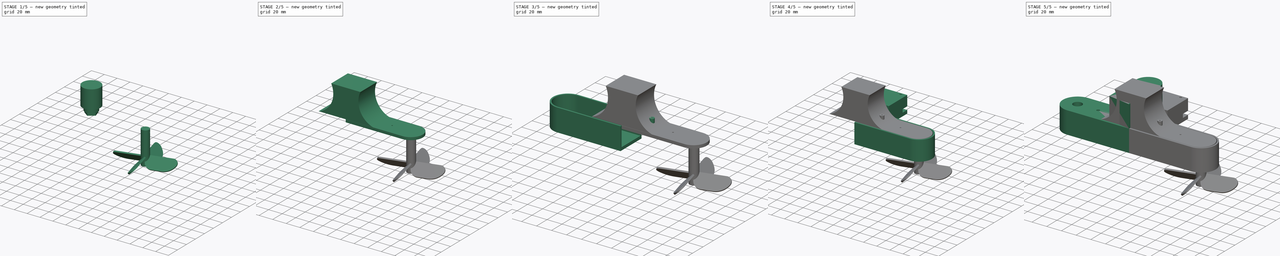
[diagram: build sequence overview — one tinted view per stage of 5, left to right]
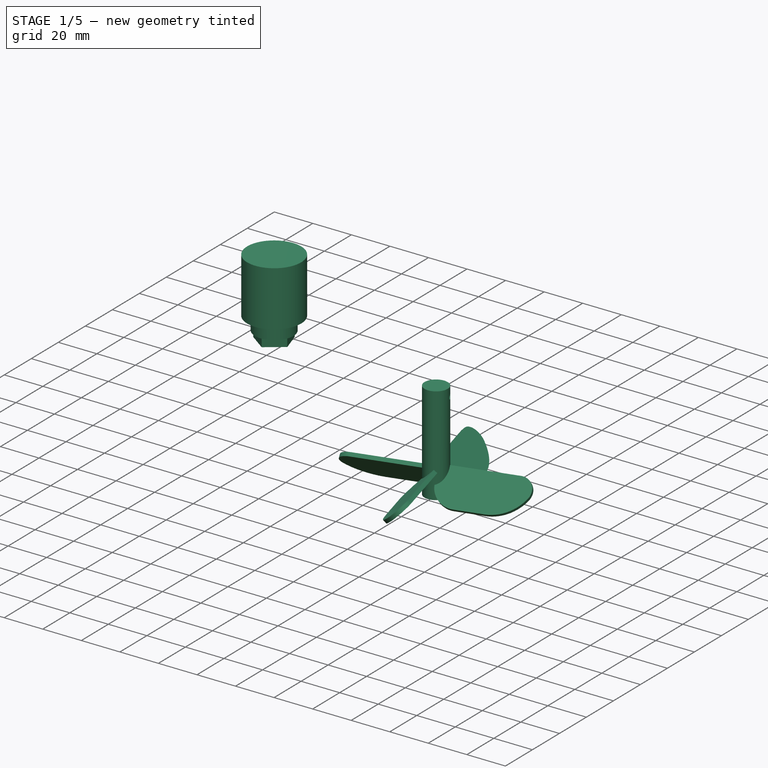
[diagram: stage 1 of 5 — iso view after this stage's code; geometry added in this stage tinted green]
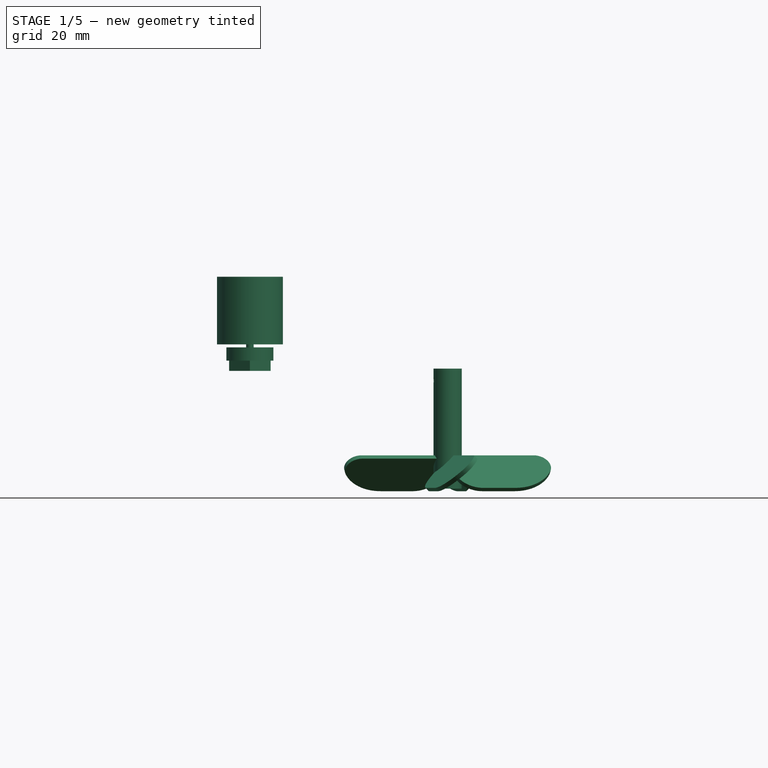
[diagram: stage 1 of 5 — front view after this stage's code; geometry added in this stage tinted green]
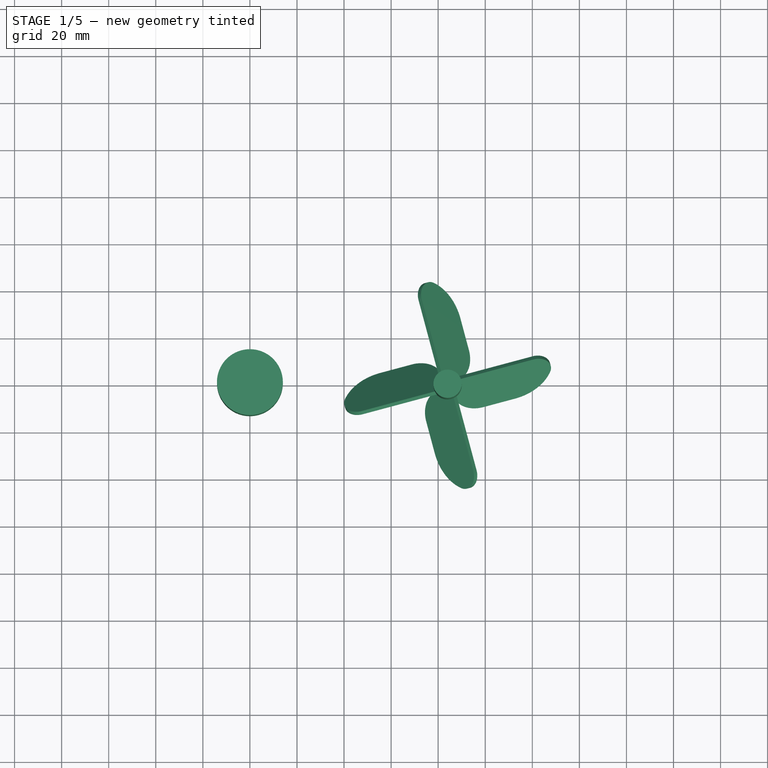
[diagram: stage 1 of 5 — top view after this stage's code; geometry added in this stage tinted green]
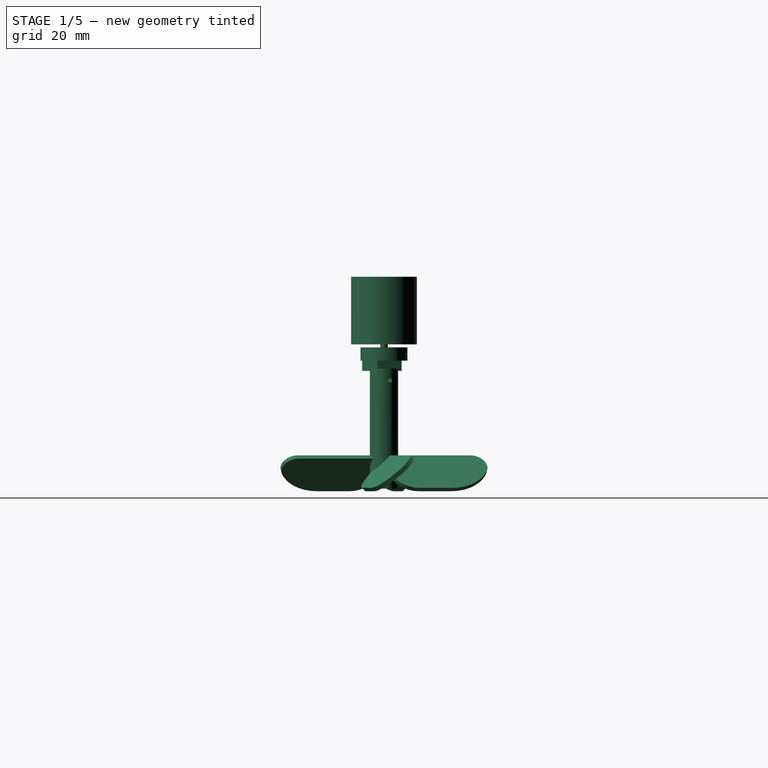
[diagram: stage 1 of 5 — right view after this stage's code; geometry added in this stage tinted green]
FCSTD DOCUMENT  (FreeCAD 0.19R)
Label: brazo_completo
License: Creative Commons Attribution-ShareAlike
LicenseURL: http://creativecommons.org/licenses/by-sa/4.0/
objects: Part::Cylinder×23, Sketcher::SketchObject×20, Part::Cut×18, PartDesign::Body×14, PartDesign::Pad×13, Part::MultiFuse×11, Part::Mirroring×10, Part::Feature×8, App::DocumentObjectGroup×6, PartDesign::Pocket×5, Part::Box×3, PartDesign::FeatureBase×2, Part::Thickness×2, PartDesign::LinearPattern×1, Part::Fuse×1, Part::FeaturePython×1, PartDesign::ShapeBinder×1
note: 150 computed .brp shape members not serialized (recipe doc carries the construction recipe); baked Part::Feature solids carry a one-line shape summary decoded from their .brp

FEATURE [PartDesign::Body] Body007  label="Tapa002"
  Group = -> [Sketch006,Pad004]
  Origin = -> Origin003
  Placement = pos=(0,0,26) rot=(0,0,1;0rad)
  Tip = -> Pad004
FEATURE [Part::Cylinder] Cylinder012  label="Motor"
  Angle = 360
  AttacherType = Attacher::AttachEngine3D
  Height = 28.7
  Radius = 14
FEATURE [Part::Cylinder] Cylinder013  label="Shaft"
  Angle = 360
  AttacherType = Attacher::AttachEngine3D
  Height = 11.3
  Placement = pos=(0,0,28.5) rot=(0,0,1;0rad)
  Radius = 1.6
FEATURE [Part::MultiFuse] Fusion
  Placement = pos=(0,0,65.3) rot=(0,1,0;3.14159rad)
  Refine = true
  Shapes = -> [Cylinder012,Cylinder013]
FEATURE [PartDesign::FeatureBase] BaseFeature
  BaseFeature = -> Fusion
FEATURE [PartDesign::Body] Body017  label="Motor001"
  BaseFeature = -> Fusion
  Group = -> [BaseFeature]
  Origin = -> Origin013
  Placement = pos=(0,0,66) rot=(0,1,0;3.14159rad)
  Tip = -> BaseFeature
FEATURE [Sketcher::SketchObject] Sketch020
  FullyConstrained = true
  MapMode = 5
  Support = -> [XY_Plane014]
  sketch-geometry (1):
    g0: Circle CenterX=0 CenterY=0 CenterZ=0 NormalX=0 NormalY=0 NormalZ=1 AngleXU=0 Radius=10
  constraints (2):
    c: Coincident(g0,g-1)
    c: Radius(g0) = 10
FEATURE [PartDesign::Pad] Pad014
  Direction = (1,1,1)
  Length = 10
  Length2 = 100
  Profile = -> Sketch020
  Refine = true
  Type = 0
FEATURE [PartDesign::Body] Body018
  Group = -> [Sketch020,Pad014]
  Origin = -> Origin014
  Tip = -> Pad014
FEATURE [Part::Feature] Cut013004  label="Engranaje_motor002"
  Placement = pos=(0,0,-21.6) rot=(0,0,1;0rad)
  shape: bbox 29.91 x 29.98 x 26 mm, 246 faces (baked)
FEATURE [Part::Cut] Cut013005
  Base = -> Body018
  Refine = true
  Tool = -> Cut013004
FEATURE [PartDesign::FeatureBase] BaseFeature001
  BaseFeature = -> Cut013005
FEATURE [Sketcher::SketchObject] Sketch021
  FullyConstrained = true
  MapMode = 5
  Placement = pos=(0,0,10) rot=(0,0,1;0rad)
  Support = -> [BaseFeature001]
  sketch-geometry (1):
    g0: Circle CenterX=0 CenterY=0 CenterZ=0 NormalX=0 NormalY=0 NormalZ=1 AngleXU=0 Radius=2
  constraints (2):
    c: Coincident(g0,g-1)
    c: Radius(g0) = 2
FEATURE [PartDesign::Pocket] Pocket004
  BaseFeature = -> BaseFeature001
  Length = 5
  Length2 = 100
  Profile = -> Sketch021
  Refine = true
  Type = 1
FEATURE [Sketcher::SketchObject] Sketch022
  FullyConstrained = false
  MapMode = 5
  Placement = pos=(0,0,10) rot=(0,0,1;0rad)
  Support = -> [Pocket004]
  sketch-geometry (4):
    g0: LineSegment StartX=-2.17573 StartY=6.45033 StartZ=0 EndX=2.17573 EndY=6.45033 EndZ=0
    g1: LineSegment StartX=2.17573 StartY=6.45033 StartZ=0 EndX=2.17573 EndY=4.9982 EndZ=0
    g2: LineSegment StartX=2.17573 StartY=4.9982 StartZ=0 EndX=-2.17573 EndY=4.9982 EndZ=0
    g3: LineSegment StartX=-2.17573 StartY=4.9982 StartZ=0 EndX=-2.17573 EndY=6.45033 EndZ=0
  constraints (8):
    c: Coincident(g0,g1)
    c: Coincident(g1,g2)
    c: Coincident(g2,g3)
    c: Coincident(g3,g0)
    c: Horizontal(g2)
    c: Vertical(g1)
    c: Vertical(g3)
    c: Symmetric(g0,g0,g-2)
FEATURE [PartDesign::Pocket] Pocket005
  BaseFeature = -> Pocket004
  Length = 7
  Length2 = 100
  Profile = -> Sketch022
  Refine = true
  Type = 0
FEATURE [PartDesign::Body] Body019
  BaseFeature = -> Cut013005
  Group = -> [BaseFeature001,Sketch021,Pocket004,Sketch022,Pocket005]
  Origin = -> Origin015
  Tip = -> Pocket005
FEATURE [Part::Cylinder] Cylinder024  label="Cilindro009"
  Angle = 360
  AttacherType = Attacher::AttachEngine3D
  Height = 15
  Placement = pos=(0,14,7) rot=(1,0,0;1.5708rad)
  Radius = 1
FEATURE [Part::Cut] Cut013006  label="Eslabon"
  Base = -> Body019
  Placement = pos=(0,0,26) rot=(0,0,1;0rad)
  Refine = true
  Tool = -> Cylinder024
FEATURE [Sketcher::SketchObject] Sketch024
  FullyConstrained = false
  MapMode = 5
  Placement = pos=(0,0,0) rot=(1,0,0;1.5708rad)
  Support = -> [XZ_Plane017]
  sketch-geometry (8):
    g0: LineSegment StartX=0.337026 StartY=20 StartZ=0 EndX=25.337 EndY=20 EndZ=0
    g1: LineSegment StartX=11.2871 StartY=0.437393 StartZ=0 EndX=25.337 EndY=0.437393 EndZ=0
    g2: LineSegment StartX=0.337026 StartY=20 StartZ=0 EndX=0.337026 EndY=11.3875 EndZ=0
    g3: ArcOfCircle CenterX=25.337 CenterY=20.4374 CenterZ=0 NormalX=0 NormalY=0 NormalZ=1 AngleXU=0 Radius=20 StartAngle=4.71239 EndAngle=5.75809
    g4: GeomPoint X=40.6848 Y=7.61375 Z=0
    g5: LineSegment StartX=25.337 StartY=20 StartZ=0 EndX=37.1162 EndY=20 EndZ=0
    g6: ArcOfCircle CenterX=37.1162 CenterY=13.6132 CenterZ=0 NormalX=0 NormalY=0 NormalZ=1 AngleXU=0 Radius=6.38684 StartAngle=5.75809 EndAngle=7.85398
    g7: ArcOfCircle CenterX=11.2871 CenterY=11.3875 CenterZ=0 NormalX=0 NormalY=0 NormalZ=1 AngleXU=0 Radius=10.9501 StartAngle=3.14159 EndAngle=4.71239
  constraints (17):
    c: Coincident(g3,g1)
    c: Vertical(g0,g3)
    c: Vertical(g1,g0)
    c: Horizontal(g0)
    c: PointOnObject(g4,g3)
    c: Coincident(g2,g0)
    c: Coincident(g5,g0)
    c: Horizontal(g5)
    c: Vertical(g2)
    c: DistanceY(g-1,g0) = 20
    c: Radius(g3) = 20
    c: DistanceX(g0,g3) = 25  'Reff'
    c: Horizontal(g1)
    c: Tangent(g3,g6) = -1.5708
    c: Tangent(g5,g6) = 1.5708
    c: Tangent(g1,g7) = -1.5708
    c: Tangent(g2,g7) = -1.5708
FEATURE [PartDesign::Pad] Pad016
  Direction = (1,1,1)
  Length = 2
  Length2 = 100
  Placement = pos=(0,0,0) rot=(1,0,0;1.5708rad)
  Profile = -> Sketch024
  Refine = true
  Type = 0
FEATURE [Part::Cylinder] Cylinder029  label="Eje007"
  Angle = 360
  AttacherType = Attacher::AttachEngine3D
  Height = 51
  Radius = 6
FEATURE [Part::Feature] Fusion001003  label="Rosca macho004"
  Placement = pos=(-1,8,46) rot=(1,0,0;1.5708rad)
  shape: bbox 3.919 x 44 x 4.387 mm, 35 faces (baked)
FEATURE [Part::Cut] Cut013012
  Base = -> Cylinder029
  Refine = true
  Tool = -> Fusion001003
FEATURE [PartDesign::Body] Body021  label="Helice001"
  Group = -> [Sketch024,Pad016]
  Origin = -> Origin017
  Placement = pos=(1,13,0) rot=(1,0,0;0.785398rad)
  Tip = -> Pad016
FEATURE [Part::FeaturePython] Array  # Draft array (typed FeaturePython)
  Angle = 360
  ArrayType = 1
  Axis = (0,0,1)
  Base = -> Body021
  Center = (0,0,0)
  Count = 4
  ExpandArray = false
  Fuse = false
  IntervalAxis = (0,0,0)
  IntervalX = (50,0,0)
  IntervalY = (0,50,0)
  IntervalZ = (0,0,50)
  NumberCircles = 3
  NumberPolar = 4
  NumberX = 2
  NumberY = 2
  NumberZ = 1
  PlacementList = 4 placements: [(1,13,0),(-13,1,0),(-1,-13,0),(13,-1,0)]
  RadialDistance = 50
  ScaleList = (4) [(1,1,1),(1,1,1),(1,1,1),(1,1,1)]
  Symmetry = 1
  TangentialDistance = 25
FEATURE [Part::MultiFuse] Fusion001017  label="Helice_izquierda"
  Placement = pos=(-84,0,-24) rot=(0,0,-1;1.8326rad)
  Refine = true
  Shapes = -> [Cut013012,Array]
FEATURE [App::DocumentObjectGroup] Grupo003  label="tapa"
  Group = -> [Cut010002,Part__Mirroring011]
FEATURE [Part::MultiFuse] Fusion001015
  Refine = true
  Shapes = -> [Cut013006,Body017]
FEATURE [App::DocumentObjectGroup] Grupo004  label="Recursos"
  Group = -> [Body007,Body006,Body,Cut013005,Fusion,Fusion001015]
FEATURE [Part::Mirroring] Part__Mirroring012  label="Helice_izquierda (Mirror #10)"
  Base = (0,0,0)
  Normal = (1,0,0)
  Source = -> Fusion001017
FEATURE [App::DocumentObjectGroup] Grupo005  label="Engranajes_espejo"
  Group = -> [Part__Mirroring008,Part__Mirroring007,Part__Mirroring006,Part__Mirroring004,Part__Mirroring003,Part__Mirroring012]
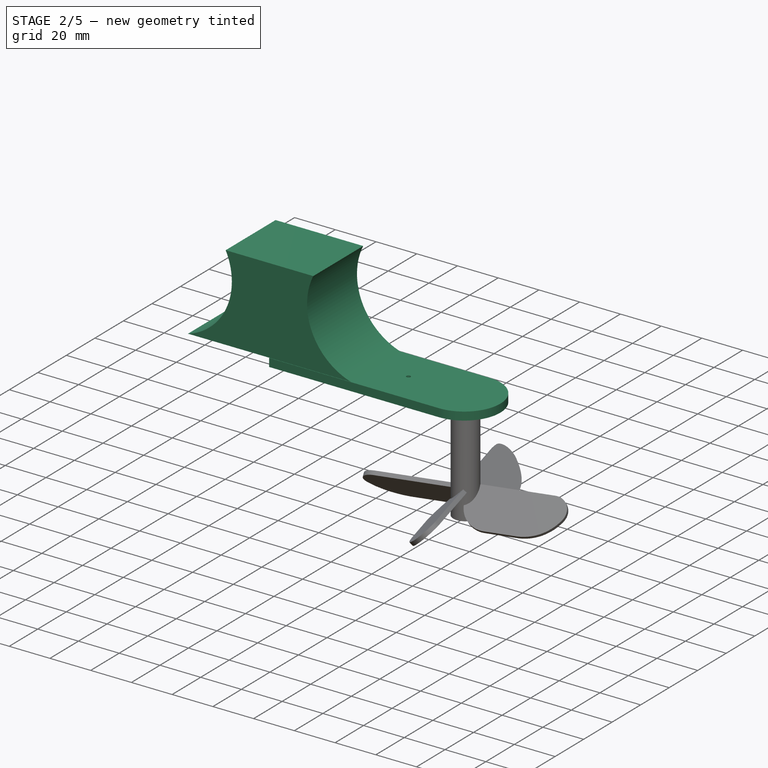
[diagram: stage 2 of 5 — iso view after this stage's code; geometry added in this stage tinted green]
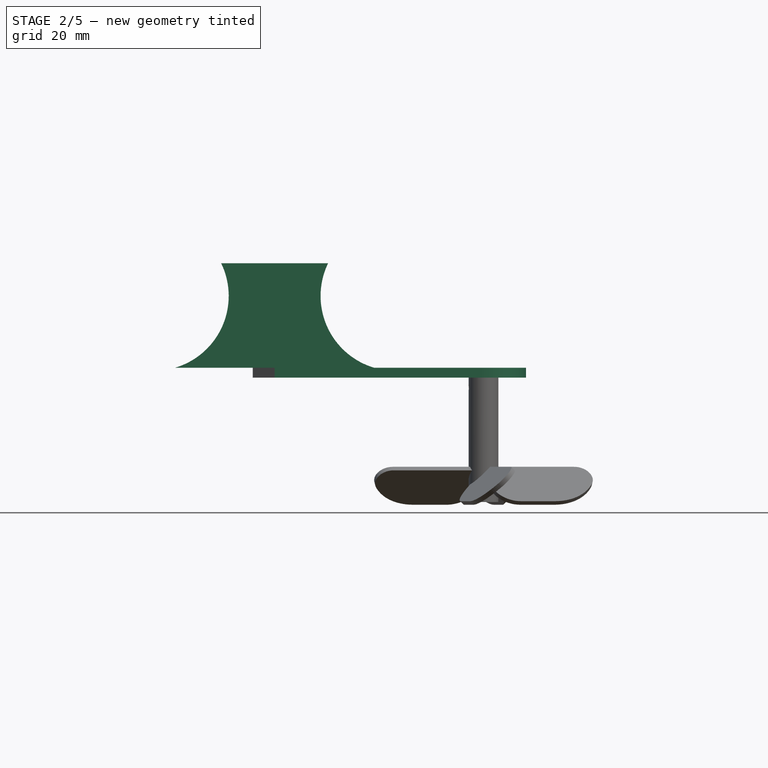
[diagram: stage 2 of 5 — front view after this stage's code; geometry added in this stage tinted green]
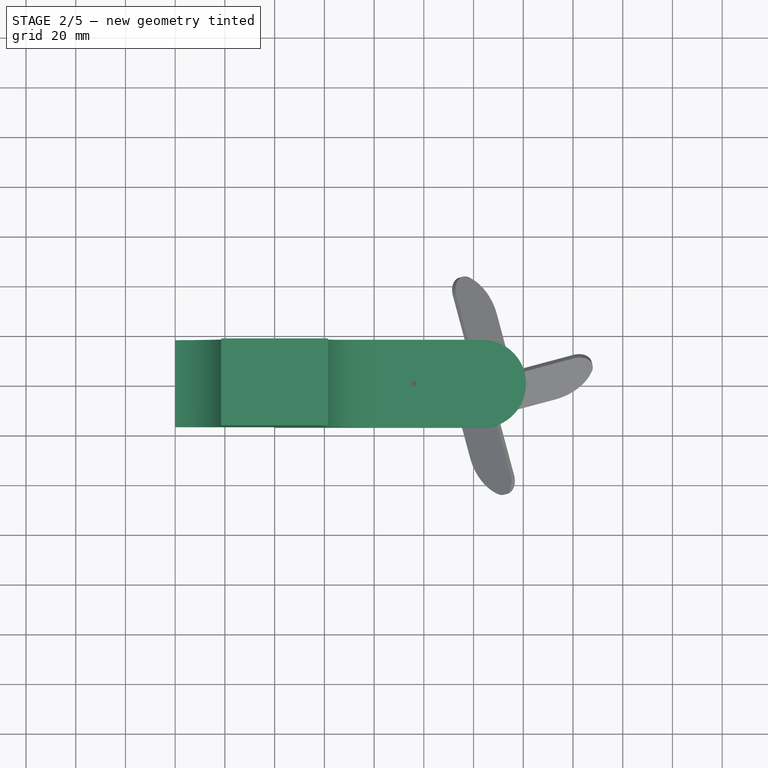
[diagram: stage 2 of 5 — top view after this stage's code; geometry added in this stage tinted green]
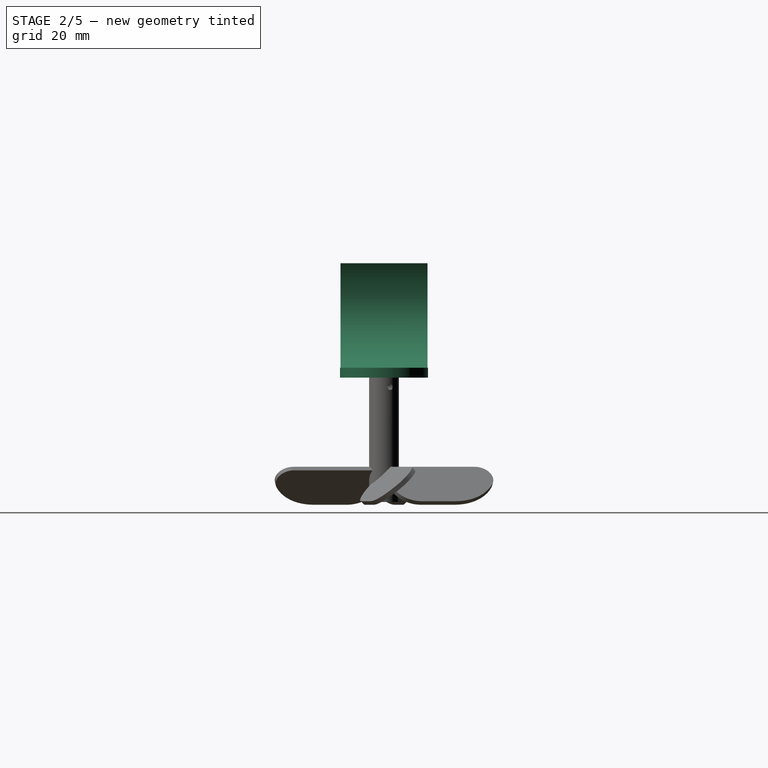
[diagram: stage 2 of 5 — right view after this stage's code; geometry added in this stage tinted green]
FEATURE [Part::Cylinder] Cylinder021  label="Eje004"
  Angle = 360
  AttacherType = Attacher::AttachEngine3D
  Height = 16
  Placement = pos=(0,0,15) rot=(0,0,1;0rad)
  Radius = 11.3
FEATURE [Part::Cylinder] Cylinder020  label="Eje003"
  Angle = 360
  AttacherType = Attacher::AttachEngine3D
  Height = 15
  Placement = pos=(-28,0,13) rot=(0,0,1;0rad)
  Radius = 7.3
FEATURE [Part::Cylinder] Cylinder007  label="Eje002"
  Angle = 360
  AttacherType = Attacher::AttachEngine3D
  Height = 15
  Placement = pos=(-56,0,13) rot=(0,0,1;0rad)
  Radius = 7.3
FEATURE [Part::MultiFuse] Fusion001011
  Refine = true
  Shapes = -> [Cylinder007,Cylinder020]
FEATURE [Part::Cylinder] Cylinder019  label="Eje001"
  Angle = 360
  AttacherType = Attacher::AttachEngine3D
  Height = 52
  Placement = pos=(-84,0,-24) rot=(0,0,1;0rad)
  Radius = 7.3
FEATURE [Sketcher::SketchObject] Sketch004  label="Estructura001"
  FullyConstrained = true
  MapMode = 5
  Support = -> [XY_Plane001]
  sketch-geometry (4):
    g0: LineSegment StartX=0 StartY=17.7 StartZ=0 EndX=-83.4 EndY=17.7 EndZ=0
    g1: LineSegment StartX=0 StartY=-17.7 StartZ=0 EndX=-83.4 EndY=-17.7 EndZ=0
    g2: ArcOfCircle CenterX=-83.4 CenterY=2e-16 CenterZ=0 NormalX=0 NormalY=0 NormalZ=1 AngleXU=0 Radius=17.7 StartAngle=1.5708 EndAngle=4.71239
    g3: LineSegment StartX=0 StartY=17.7 StartZ=0 EndX=0 EndY=-17.7 EndZ=0
  constraints (12):
    c: PointOnObject(g0,g-2)
    c: Horizontal(g0)
    c: PointOnObject(g1,g-2)
    c: Horizontal(g1)
    c: Symmetric(g0,g1,g-1)
    c: Coincident(g2,g1)
    c: Coincident(g2,g0)
    c: Vertical(g2,g0)
    c: Coincident(g3,g0)
    c: Coincident(g3,g1)
    c: DistanceX(g1,g1) = 83.4
    c: DistanceY(g2,g0) = 17.7
FEATURE [PartDesign::Pad] Pad002
  Direction = (1,1,1)
  Length = 4
  Length2 = 100
  Profile = -> Sketch004
  Refine = true
  Type = 0
FEATURE [PartDesign::Body] Body005  label="Tapa"
  Group = -> [Sketch004,Pad002]
  Origin = -> Origin001
  Placement = pos=(0,0,26) rot=(0,0,1;0rad)
  Tip = -> Pad002
FEATURE [Part::Cut] Cut
  Base = -> Body005
  Refine = true
  Tool = -> Cylinder019
FEATURE [Part::Cut] Cut026
  Base = -> Cut
  Refine = true
  Tool = -> Fusion001011
FEATURE [Part::Cut] Cut027
  Base = -> Cut026
  Refine = true
  Tool = -> Cylinder021
FEATURE [Part::Feature] Cut010001  label="Engranaje_motor001"
  Placement = pos=(0,0,4.4) rot=(0,0,1;0rad)
  shape: bbox 29.91 x 29.98 x 26 mm, 246 faces (baked)
FEATURE [Part::Cylinder] Cylinder022  label="Cilindro007"
  Angle = 360
  AttacherType = Attacher::AttachEngine3D
  Height = 10
  Placement = pos=(-28,0,-4) rot=(0,0,1;0rad)
  Radius = 1
FEATURE [Part::Cylinder] Cylinder023  label="Cilindro008"
  Angle = 360
  AttacherType = Attacher::AttachEngine3D
  Height = 10
  Placement = pos=(-56,0,-4) rot=(0,0,1;0rad)
  Radius = 1
FEATURE [Part::MultiFuse] Fusion001013
  Placement = pos=(0,0,27) rot=(0,0,1;0rad)
  Refine = true
  Shapes = -> [Cylinder023,Cylinder022]
FEATURE [Part::Cut] Cut010002
  Base = -> Cut027
  Refine = true
  Tool = -> Fusion001013
FEATURE [Part::Box] Box001  label="Cubo001"
  AttacherType = Attacher::AttachEngine3D
  Height = 26
  Length = 27
  Placement = pos=(-14,0,42) rot=(0,0,1;0rad)
  Width = 22
FEATURE [App::DocumentObjectGroup] Grupo002  label="Base"
  Group = -> [Fusion001014,Part__Mirroring009,Cut013021]
FEATURE [Sketcher::SketchObject] Sketch023
  FullyConstrained = false
  MapMode = 5
  Placement = pos=(0,0,0) rot=(1,0,0;1.5708rad)
  Support = -> [XZ_Plane016]
  sketch-geometry (4):
    g0: ArcOfCircle CenterX=48.5606 CenterY=28.8451 CenterZ=0 NormalX=0 NormalY=0 NormalZ=1 AngleXU=0 Radius=30.0886 StartAngle=2.68911 EndAngle=4.42389
    g1: LineSegment StartX=40 StartY=0 StartZ=0 EndX=-40 EndY=0 EndZ=0
    g2: ArcOfCircle CenterX=-48.5606 CenterY=28.8451 CenterZ=0 NormalX=0 NormalY=0 NormalZ=1 AngleXU=0 Radius=30.0886 StartAngle=5.00089 EndAngle=6.73567
    g3: LineSegment StartX=-21.5 StartY=42 StartZ=0 EndX=21.5 EndY=42 EndZ=0
  constraints (11):
    c: PointOnObject(g0,g-1)
    c: Coincident(g2,g1)
    c: Symmetric(g2,g0,g-2)
    c: Symmetric(g1,g0,g-2)
    c: Symmetric(g2,g0,g-2)
    c: Coincident(g3,g2)
    c: Coincident(g3,g0)
    c: Coincident(g1,g0)
    c: DistanceY(g1,g2) = 42
    c: DistanceX(g2,g0) = 43
    c: DistanceX(g1,g0) = 80
FEATURE [PartDesign::Pad] Pad015
  Direction = (1,1,1)
  Length = 35
  Length2 = 100
  Placement = pos=(0,0,0) rot=(1,0,0;1.5708rad)
  Profile = -> Sketch023
  Refine = true
  Type = 0
FEATURE [Part::Thickness] Thickness
  Faces = -> Pad015 [Face2]
  Intersection = false
  Join = 0
  Mode = 0
  Placement = pos=(0,17.5,30) rot=(0,0,1;0rad)
  SelfIntersection = false
  Value = -1
FEATURE [Part::Cut] Cut013014
  Base = -> Thickness
  Refine = true
  Tool = -> Box001
FEATURE [PartDesign::Body] Body020  label="Sup_motor"
  Group = -> [Sketch023,Pad015]
  Origin = -> Origin016
  Placement = pos=(0,-17,30) rot=(0,0,1;3.14159rad)
  Tip = -> Pad015
FEATURE [App::DocumentObjectGroup] Grupo006  label="Soporte motor"
  Group = -> [Cut013016,Body020,Cut013022]
FEATURE [Part::Mirroring] Part__Mirroring011  label="Espejo_tapa"
  Base = (0,0,0)
  Normal = (1,0,0)
  Source = -> Cut010002
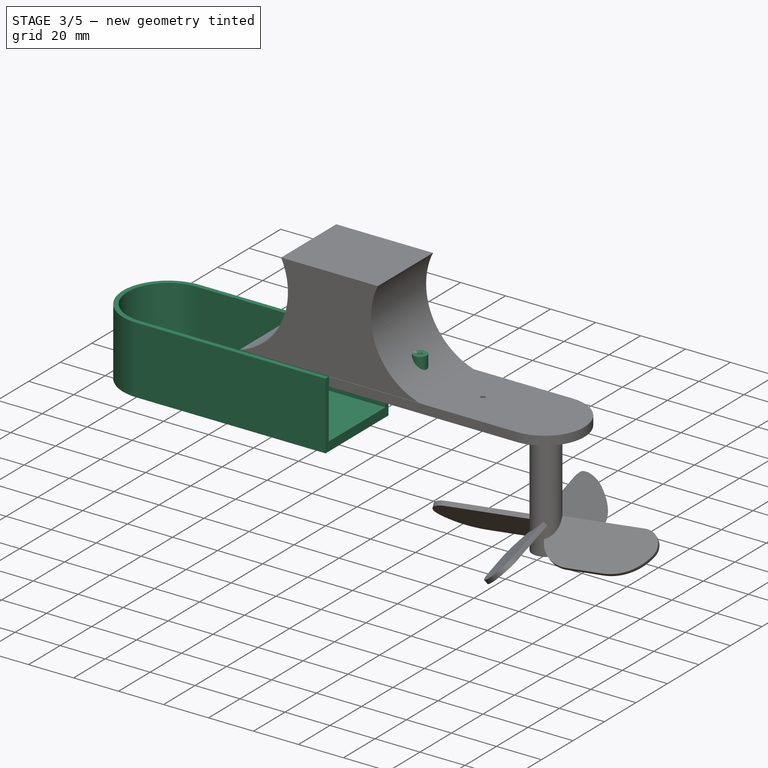
[diagram: stage 3 of 5 — iso view after this stage's code; geometry added in this stage tinted green]
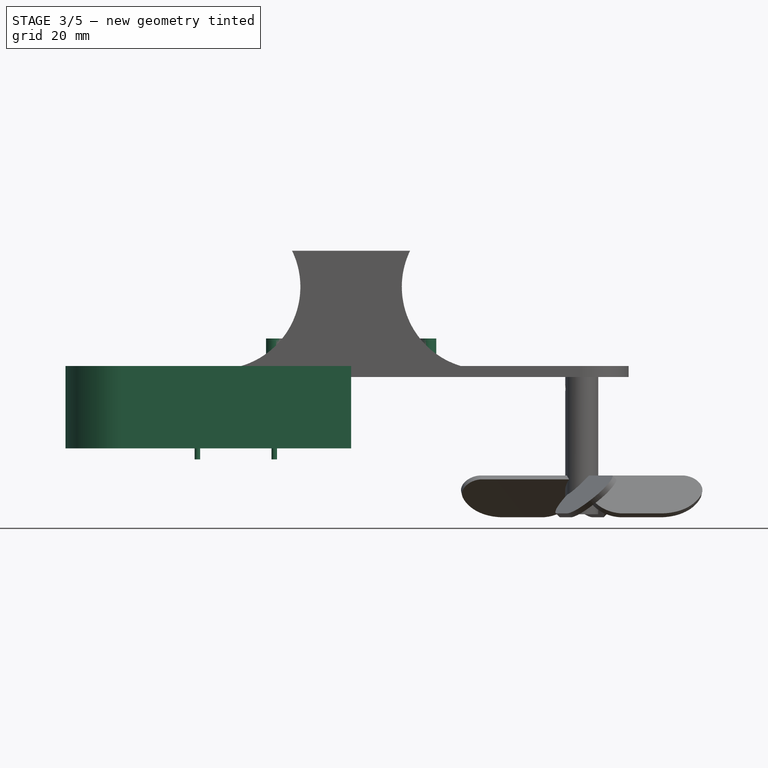
[diagram: stage 3 of 5 — front view after this stage's code; geometry added in this stage tinted green]
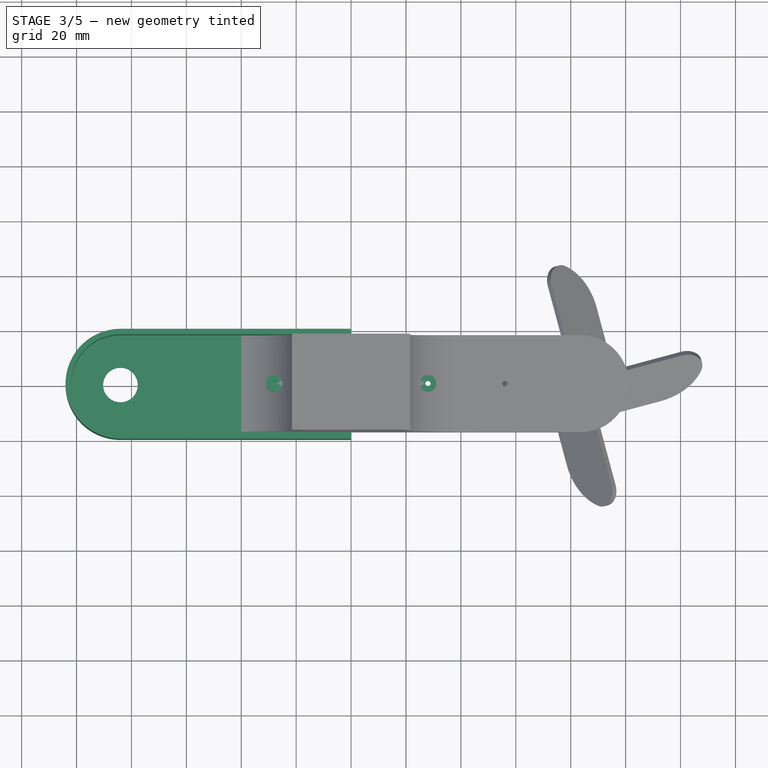
[diagram: stage 3 of 5 — top view after this stage's code; geometry added in this stage tinted green]
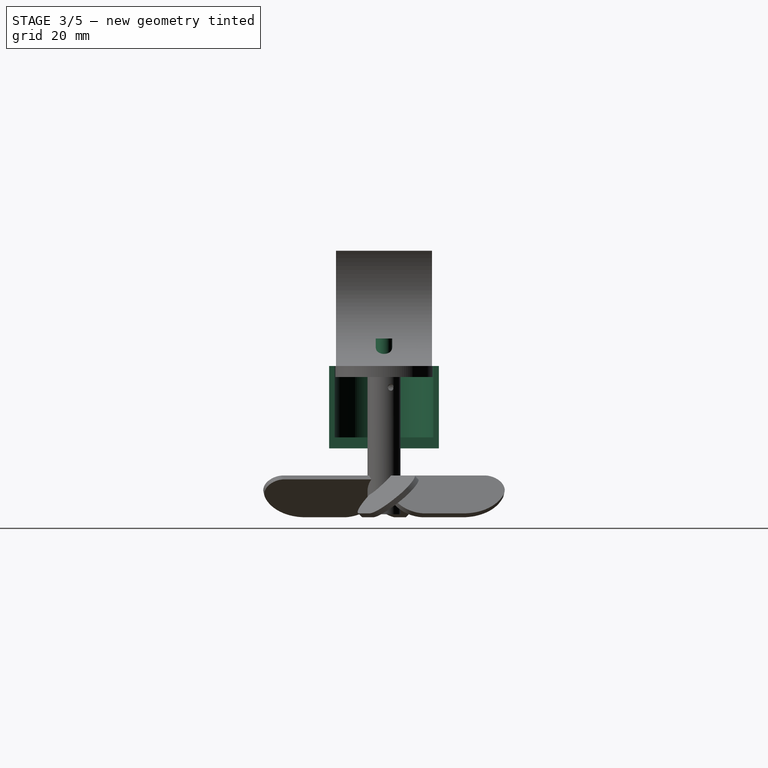
[diagram: stage 3 of 5 — right view after this stage's code; geometry added in this stage tinted green]
FEATURE [Sketcher::SketchObject] Sketch008  label="Estructura004"
  FullyConstrained = true
  MapMode = 5
  Support = -> [XY_Plane006]
  sketch-geometry (4):
    g0: LineSegment StartX=0 StartY=20 StartZ=0 EndX=-84 EndY=20 EndZ=0
    g1: LineSegment StartX=0 StartY=-20 StartZ=0 EndX=-84 EndY=-20 EndZ=0
    g2: ArcOfCircle CenterX=-84 CenterY=-9e-16 CenterZ=0 NormalX=0 NormalY=0 NormalZ=1 AngleXU=0 Radius=20 StartAngle=1.5708 EndAngle=4.71239
    g3: LineSegment StartX=0 StartY=20 StartZ=0 EndX=0 EndY=-20 EndZ=0
  constraints (12):
    c: PointOnObject(g0,g-2)
    c: Horizontal(g0)
    c: PointOnObject(g1,g-2)
    c: Horizontal(g1)
    c: Symmetric(g0,g1,g-1)
    c: Coincident(g2,g1)
    c: Coincident(g2,g0)
    c: Vertical(g2,g0)
    c: Coincident(g3,g0)
    c: Coincident(g3,g1)
    c: DistanceX(g1,g1) = 84
    c: DistanceY(g2,g0) = 20
FEATURE [PartDesign::Pad] Pad006
  Direction = (1,1,1)
  Length = 30
  Length2 = 100
  Profile = -> Sketch008
  Refine = true
  Type = 0
FEATURE [PartDesign::Body] Body010  label="Base001"
  Group = -> [Sketch008,Pad006]
  Origin = -> Origin006
  Tip = -> Pad006
FEATURE [Sketcher::SketchObject] Sketch009  label="Estructura005"
  FullyConstrained = true
  MapMode = 5
  Support = -> [XY_Plane007]
  sketch-geometry (4):
    g0: LineSegment StartX=0 StartY=18 StartZ=0 EndX=-84 EndY=18 EndZ=0
    g1: LineSegment StartX=0 StartY=-18 StartZ=0 EndX=-84 EndY=-18 EndZ=0
    g2: ArcOfCircle CenterX=-84 CenterY=-4e-16 CenterZ=0 NormalX=0 NormalY=0 NormalZ=1 AngleXU=0 Radius=18 StartAngle=1.5708 EndAngle=4.71239
    g3: LineSegment StartX=0 StartY=18 StartZ=0 EndX=0 EndY=-18 EndZ=0
  constraints (12):
    c: PointOnObject(g0,g-2)
    c: Horizontal(g0)
    c: PointOnObject(g1,g-2)
    c: Horizontal(g1)
    c: Symmetric(g0,g1,g-1)
    c: Coincident(g2,g1)
    c: Coincident(g2,g0)
    c: Vertical(g2,g0)
    c: Coincident(g3,g0)
    c: Coincident(g3,g1)
    c: DistanceX(g1,g1) = 84
    c: DistanceY(g2,g0) = 18
FEATURE [PartDesign::Pad] Pad007
  Direction = (1,1,1)
  Length = 30
  Length2 = 100
  Profile = -> Sketch009
  Refine = true
  Type = 0
FEATURE [PartDesign::Body] Body011  label="Base002"
  Group = -> [Sketch009,Pad007]
  Origin = -> Origin007
  Placement = pos=(0,0,4) rot=(0,0,1;0rad)
  Tip = -> Pad007
FEATURE [Part::Cut] Cut017  label="Base003"
  Base = -> Body010
  Refine = true
  Tool = -> Body011
FEATURE [Part::Cylinder] Cylinder  label="Eje"
  Angle = 360
  AttacherType = Attacher::AttachEngine3D
  Height = 52
  Placement = pos=(-84,0,-28) rot=(0,0,1;0rad)
  Radius = 6.3
FEATURE [Part::Cut] Cut018
  Base = -> Cut017
  Refine = true
  Tool = -> Cylinder
FEATURE [Part::Cylinder] Cylinder017  label="Cilindro005"
  Angle = 360
  AttacherType = Attacher::AttachEngine3D
  Height = 10
  Placement = pos=(-28,0,-4) rot=(0,0,1;0rad)
  Radius = 1
FEATURE [Part::Cylinder] Cylinder018  label="Cilindro006"
  Angle = 360
  AttacherType = Attacher::AttachEngine3D
  Height = 10
  Placement = pos=(-56,0,-4) rot=(0,0,1;0rad)
  Radius = 1
FEATURE [Part::MultiFuse] Fusion001010
  Refine = true
  Shapes = -> [Cylinder018,Cylinder017]
FEATURE [Part::Cylinder] Cylinder032  label="Cilindro012"
  Angle = 360
  AttacherType = Attacher::AttachEngine3D
  Height = 21
  Placement = pos=(-28,0,21) rot=(0,0,1;0rad)
  Radius = 1
FEATURE [Part::Mirroring] Part__Mirroring  label="Cilindro012 (Mirror #6)"
  Base = (0,0,0)
  Normal = (1,0,0)
  Source = -> Cylinder032
FEATURE [Part::Cylinder] Cylinder034  label="Cilindro014"
  Angle = 360
  AttacherType = Attacher::AttachEngine3D
  Height = 21
  Placement = pos=(-28,0,21) rot=(0,0,1;0rad)
  Radius = 1
FEATURE [Part::MultiFuse] Fusion001018
  Refine = true
  Shapes = -> [Cylinder032,Part__Mirroring,Cylinder034]
FEATURE [Part::Cylinder] Cylinder036  label="Cilindro016"
  Angle = 360
  AttacherType = Attacher::AttachEngine3D
  Height = 8
  Placement = pos=(-28,0,32) rot=(0,0,1;0rad)
  Radius = 3
FEATURE [Part::Mirroring] Part__Mirroring010  label="Cilindro016 (Mirror #8)"
  Base = (0,0,0)
  Normal = (1,0,0)
  Source = -> Cylinder036
FEATURE [Part::Cylinder] Cylinder037  label="Cilindro017"
  Angle = 360
  AttacherType = Attacher::AttachEngine3D
  Height = 8
  Placement = pos=(-28,0,32) rot=(0,0,1;0rad)
  Radius = 3
FEATURE [Part::MultiFuse] Fusion001019
  Refine = true
  Shapes = -> [Cylinder037,Part__Mirroring010]
FEATURE [Part::MultiFuse] Fusion001020
  Refine = true
  Shapes = -> [Cut013014,Fusion001019]
FEATURE [Part::Cut] Cut013022
  Base = -> Fusion001020
  Refine = true
  Tool = -> Fusion001018
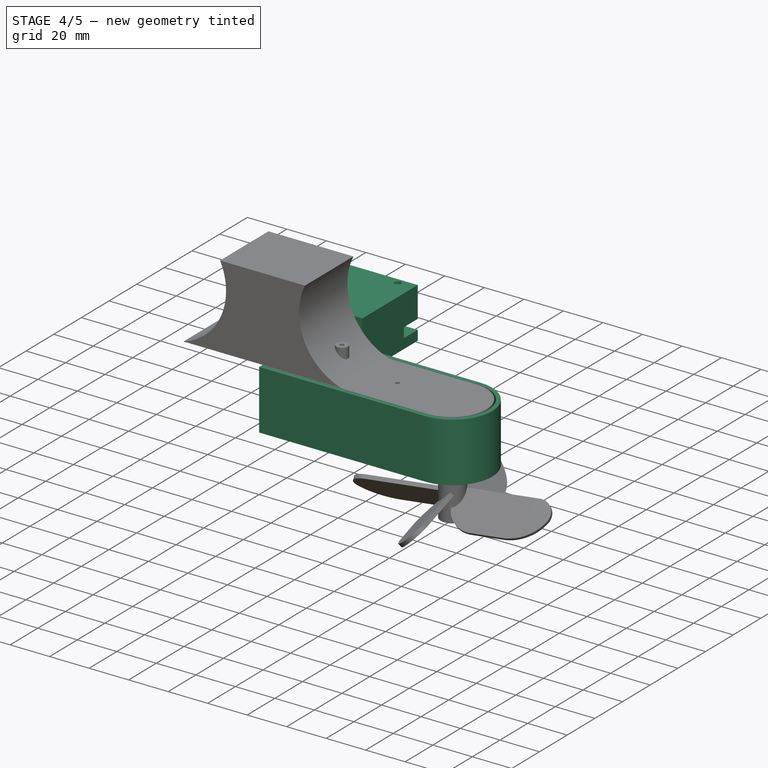
[diagram: stage 4 of 5 — iso view after this stage's code; geometry added in this stage tinted green]
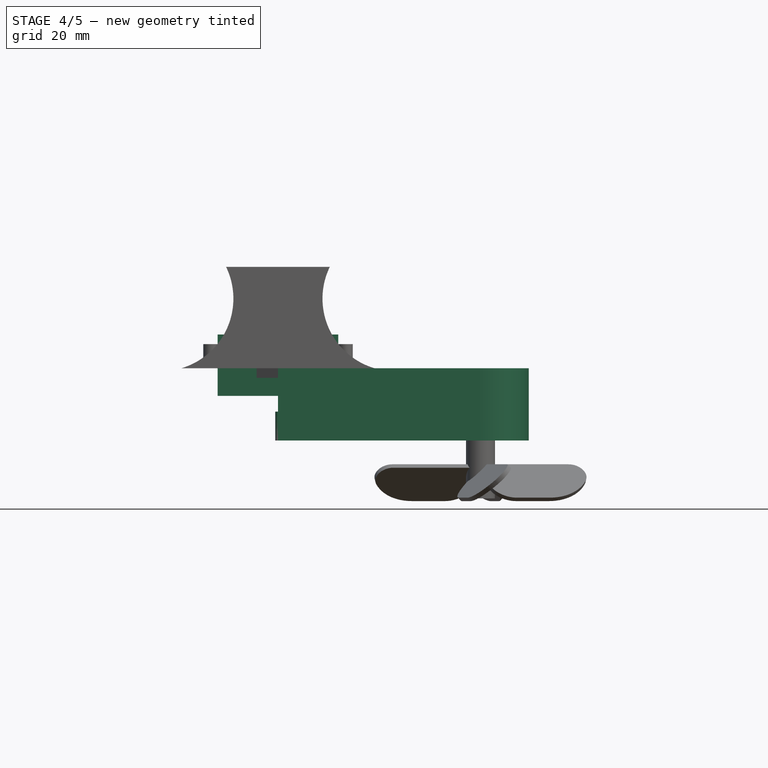
[diagram: stage 4 of 5 — front view after this stage's code; geometry added in this stage tinted green]
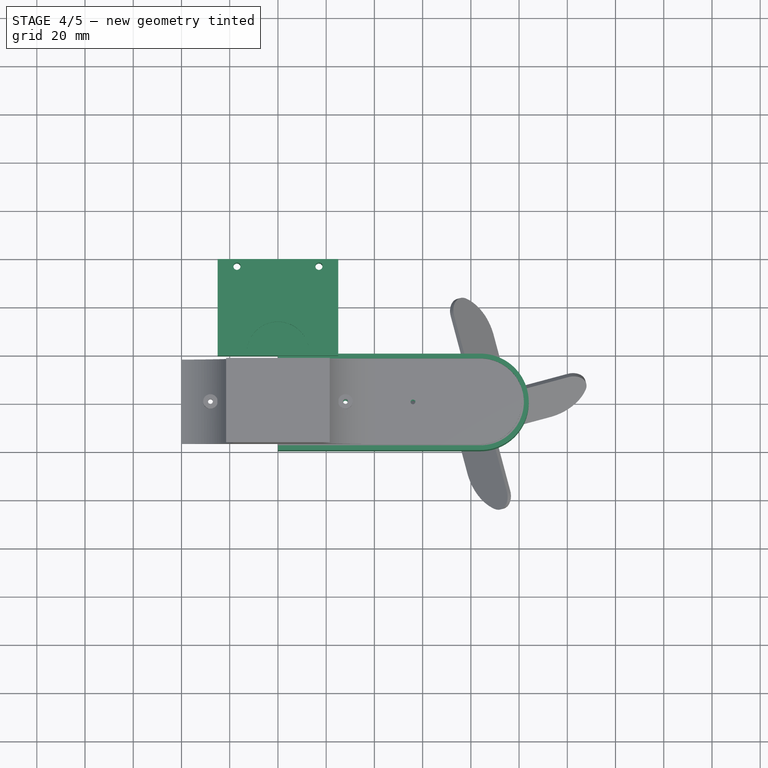
[diagram: stage 4 of 5 — top view after this stage's code; geometry added in this stage tinted green]
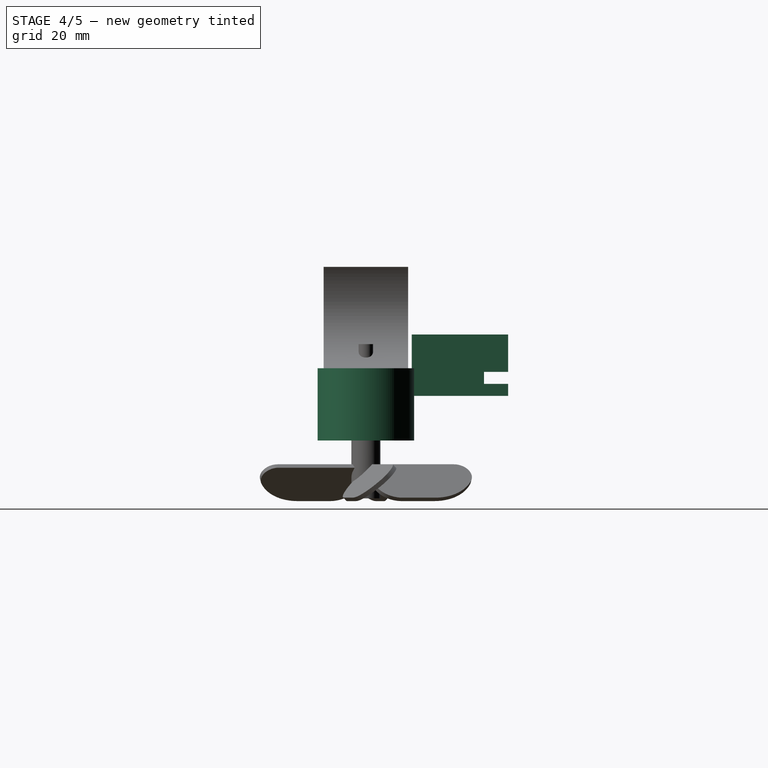
[diagram: stage 4 of 5 — right view after this stage's code; geometry added in this stage tinted green]
FEATURE [Part::Cylinder] Cylinder014  label="Cilindro"
  Angle = 360
  AttacherType = Attacher::AttachEngine3D
  Height = 12
  Radius = 1.1
FEATURE [Part::MultiFuse] Fusion001006
  Refine = true
  Shapes = -> [Cut018,Cylinder014]
FEATURE [Part::Cylinder] Cylinder003  label="Cilindro003"
  Angle = 360
  AttacherType = Attacher::AttachEngine3D
  Height = 44
  Placement = pos=(17,63,-20) rot=(0,0,1;0rad)
  Radius = 1.5
FEATURE [Part::Cylinder] Cylinder002  label="Cilindro004"
  Angle = 360
  AttacherType = Attacher::AttachEngine3D
  Height = 44
  Placement = pos=(-17,63,-22) rot=(0,0,1;0rad)
  Radius = 1.5
FEATURE [Part::Fuse] Fusion001009
  Base = -> Cylinder002
  Placement = pos=(0,-15,0) rot=(0,0,1;0rad)
  Refine = true
  Tool = -> Cylinder003
FEATURE [Sketcher::SketchObject] Sketch014
  FullyConstrained = true
  MapMode = 5
  Placement = pos=(0,0,0) rot=(0.57735,0.57735,0.57735;2.0944rad)
  Support = -> [YZ_Plane009]
  sketch-geometry (8):
    g0: LineSegment StartX=-20 StartY=-7.5 StartZ=0 EndX=-20 EndY=18 EndZ=0
    g1: LineSegment StartX=-20 StartY=18 StartZ=0 EndX=20 EndY=18 EndZ=0
    g2: LineSegment StartX=20 StartY=18 StartZ=0 EndX=20 EndY=2.5 EndZ=0
    g3: LineSegment StartX=20 StartY=2.5 StartZ=0 EndX=10 EndY=2.5 EndZ=0
    g4: LineSegment StartX=10 StartY=2.5 StartZ=0 EndX=10 EndY=-2.5 EndZ=0
    g5: LineSegment StartX=10 StartY=-2.5 StartZ=0 EndX=20 EndY=-2.5 EndZ=0
    g6: LineSegment StartX=20 StartY=-2.5 StartZ=0 EndX=20 EndY=-7.5 EndZ=0
    g7: LineSegment StartX=20 StartY=-7.5 StartZ=0 EndX=-20 EndY=-7.5 EndZ=0
  constraints (22):
    c: Vertical(g0)
    c: Coincident(g1,g0)
    c: Coincident(g2,g1)
    c: Coincident(g3,g2)
    c: Coincident(g5,g4)
    c: Coincident(g6,g5)
    c: Vertical(g6)
    c: Coincident(g7,g6)
    c: Coincident(g7,g0)
    c: Horizontal(g7)
    c: Coincident(g4,g3)
    c: Symmetric(g3,g4,g-1)
    c: Symmetric(g2,g5,g-1)
    c: Horizontal(g2,g3)
    c: Vertical(g1,g2)
    c: DistanceX(g0,g6) = 40
    c: Symmetric(g0,g1,g-2)
    c: DistanceY(g6,g5) = 5
    c: DistanceX(g5,g5) = 10
    c: DistanceY(g2,g1) = 15.5
    c: DistanceX(g4,g5) = 10
    c: DistanceY(g5,g2) = 5
FEATURE [PartDesign::Pad] Pad009
  Direction = (1,1,1)
  Length = 50
  Length2 = 100
  Placement = pos=(0,0,0) rot=(0.57735,0.57735,0.57735;2.0944rad)
  Profile = -> Sketch014
  Refine = true
  Type = 0
FEATURE [Sketcher::SketchObject] Sketch018  label="Estructura006"
  FullyConstrained = true
  MapMode = 5
  Support = -> [XY_Plane011]
  sketch-geometry (4):
    g0: LineSegment StartX=0 StartY=19 StartZ=0 EndX=-83.4 EndY=19 EndZ=0
    g1: LineSegment StartX=0 StartY=-19 StartZ=0 EndX=-83.4 EndY=-19 EndZ=0
    g2: ArcOfCircle CenterX=-83.4 CenterY=9e-16 CenterZ=0 NormalX=0 NormalY=0 NormalZ=1 AngleXU=0 Radius=19 StartAngle=1.5708 EndAngle=4.71239
    g3: LineSegment StartX=0 StartY=19 StartZ=0 EndX=0 EndY=-19 EndZ=0
  constraints (12):
    c: PointOnObject(g0,g-2)
    c: Horizontal(g0)
    c: PointOnObject(g1,g-2)
    c: Horizontal(g1)
    c: Symmetric(g0,g1,g-1)
    c: Coincident(g2,g1)
    c: Coincident(g2,g0)
    c: Vertical(g2,g0)
    c: Coincident(g3,g0)
    c: Coincident(g3,g1)
    c: DistanceX(g1,g1) = 83.4
    c: DistanceY(g2,g0) = 19
FEATURE [PartDesign::Pad] Pad012
  Direction = (1,1,1)
  Length = 3
  Length2 = 100
  Profile = -> Sketch018
  Refine = true
  Type = 0
FEATURE [PartDesign::Body] Body015  label="Tapa003"
  Group = -> [Sketch018,Pad012]
  Origin = -> Origin011
  Placement = pos=(0,0,26) rot=(0,0,1;0rad)
  Tip = -> Pad012
FEATURE [Sketcher::SketchObject] Sketch019  label="Estructura007"
  FullyConstrained = true
  MapMode = 5
  Support = -> [XY_Plane012]
  sketch-geometry (4):
    g0: LineSegment StartX=0 StartY=15.7 StartZ=0 EndX=-83.4 EndY=15.7 EndZ=0
    g1: LineSegment StartX=0 StartY=-15.7 StartZ=0 EndX=-83.4 EndY=-15.7 EndZ=0
    g2: ArcOfCircle CenterX=-83.4 CenterY=7e-16 CenterZ=0 NormalX=0 NormalY=0 NormalZ=1 AngleXU=0 Radius=15.7 StartAngle=1.5708 EndAngle=4.71239
    g3: LineSegment StartX=0 StartY=15.7 StartZ=0 EndX=0 EndY=-15.7 EndZ=0
  constraints (12):
    c: PointOnObject(g0,g-2)
    c: Horizontal(g0)
    c: PointOnObject(g1,g-2)
    c: Horizontal(g1)
    c: Symmetric(g0,g1,g-1)
    c: Coincident(g2,g1)
    c: Coincident(g2,g0)
    c: Vertical(g2,g0)
    c: Coincident(g3,g0)
    c: Coincident(g3,g1)
    c: DistanceX(g1,g1) = 83.4
    c: DistanceY(g2,g0) = 15.7
FEATURE [PartDesign::Pad] Pad013
  Direction = (1,1,1)
  Length = 3
  Length2 = 100
  Profile = -> Sketch019
  Refine = true
  Type = 0
FEATURE [PartDesign::Body] Body016  label="Tapa004"
  Group = -> [Sketch019,Pad013]
  Origin = -> Origin012
  Placement = pos=(0,0,26) rot=(0,0,1;0rad)
  Tip = -> Pad013
FEATURE [Part::Cut] Cut013003
  Base = -> Body015
  Placement = pos=(0,0,-3.3) rot=(0,0,1;0rad)
  Refine = true
  Tool = -> Body016
FEATURE [Part::Cut] Cut013007
  Base = -> Fusion001006
  Refine = true
  Tool = -> Fusion001010
FEATURE [Part::MultiFuse] Fusion001014
  Refine = true
  Shapes = -> [Cut013003,Cut013007]
FEATURE [Sketcher::SketchObject] Sketch025
  FullyConstrained = true
  MapMode = 5
  Placement = pos=(8.8e-15,20,-4.4e-15) rot=(0.57735,0.57735,0.57735;4.18879rad)
  Support = -> [Pad009]
FEATURE [Sketcher::SketchObject] Sketch026
  ExternalGeometry = -> [Pad009]
  FullyConstrained = false
  MapMode = 5
  Placement = pos=(8.8e-15,20,-4.4e-15) rot=(0.57735,0.57735,0.57735;4.18879rad)
  Support = -> [Pad009]
  sketch-geometry (4):
    g0: LineSegment StartX=5.16088 StartY=38.511 StartZ=0 EndX=15.1609 EndY=38.511 EndZ=0
    g1: LineSegment StartX=15.1609 StartY=38.511 StartZ=0 EndX=15.1609 EndY=11.511 EndZ=0
    g2: LineSegment StartX=15.1609 StartY=11.511 StartZ=0 EndX=5.16088 EndY=11.511 EndZ=0
    g3: LineSegment StartX=5.16088 StartY=11.511 StartZ=0 EndX=5.16088 EndY=38.511 EndZ=0
  constraints (12):
    c: Coincident(g0,g1)
    c: Coincident(g1,g2)
    c: Coincident(g2,g3)
    c: Coincident(g3,g0)
    c: Horizontal(g0)
    c: Horizontal(g2)
    c: Vertical(g1)
    c: Vertical(g3)
    c: DistanceY(g1,g0) = 27
    c: DistanceX(g0,g0) = 10
    c: DistanceY(g0,g-3) = 11.489
    c: DistanceY(g-4,g1) = 11.511
FEATURE [PartDesign::Pocket] Pocket006
  BaseFeature = -> Pad009
  Length = 38
  Length2 = 100
  Placement = pos=(0,0,0) rot=(0.57735,0.57735,0.57735;2.0944rad)
  Profile = -> Sketch026
  Refine = true
  Type = 0
FEATURE [Part::Cylinder] Cylinder035  label="Cilindro015"
  Angle = 360
  AttacherType = Attacher::AttachEngine3D
  Height = 24
  Placement = pos=(0,17,45) rot=(0,0,1;0rad)
  Radius = 13
FEATURE [Part::Box] Box002  label="Cubo002"
  AttacherType = Attacher::AttachEngine3D
  Height = 41
  Length = 36
  Placement = pos=(-19,1,45) rot=(0,0,1;0rad)
  Width = 16
FEATURE [Part::Cut] Cut013020
  Base = -> Cylinder035
  Placement = pos=(0,3,-14) rot=(0,0,1;0rad)
  Refine = true
  Tool = -> Box002
FEATURE [Part::Mirroring] Part__Mirroring009  label="Fusion001014 (Mirror #7)"
  Base = (0,0,0)
  Normal = (1,0,0)
  Source = -> Fusion001014
FEATURE [PartDesign::ShapeBinder] CopyCut013022
  Placement = pos=(0,17.5,30) rot=(1,0,0;1.5708rad)
  TraceSupport = false
FEATURE [Sketcher::SketchObject] Sketch027
  FullyConstrained = false
  MapMode = 5
  Placement = pos=(0,17.5,72) rot=(0,0,1;3.14159rad)
  Support = -> [CopyCut013022]
  sketch-geometry (1):
    g0: Circle CenterX=-35.5912 CenterY=34.159 CenterZ=0 NormalX=0 NormalY=0 NormalZ=1 AngleXU=0 Radius=3.76769
FEATURE [PartDesign::Body] Body013
  Group = -> [Sketch014,Pad009,Sketch025,Sketch026,Pocket006,CopyCut013022,Sketch027]
  Origin = -> Origin009
  Placement = pos=(-25,31,-5) rot=(0,0,1;0rad)
  Tip = -> Pocket006
FEATURE [Part::Cut] Cut013018
  Base = -> Body013
  Placement = pos=(0,8,31) rot=(0,0,1;0rad)
  Refine = true
  Tool = -> Fusion001009
FEATURE [Part::Cut] Cut013021
  Base = -> Cut013018
  Refine = true
  Tool = -> Cut013020
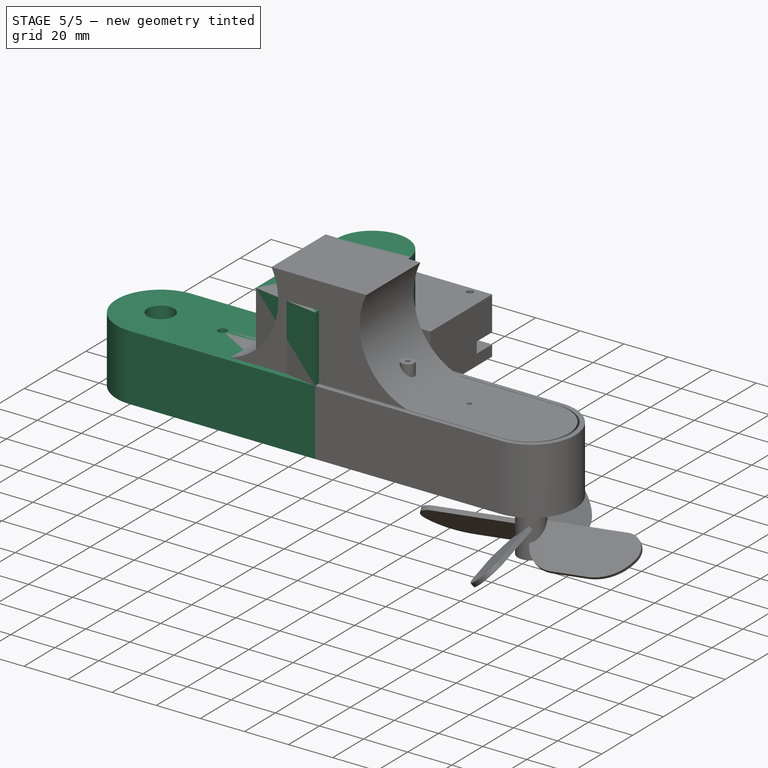
[diagram: stage 5 of 5 — iso view after this stage's code; geometry added in this stage tinted green]
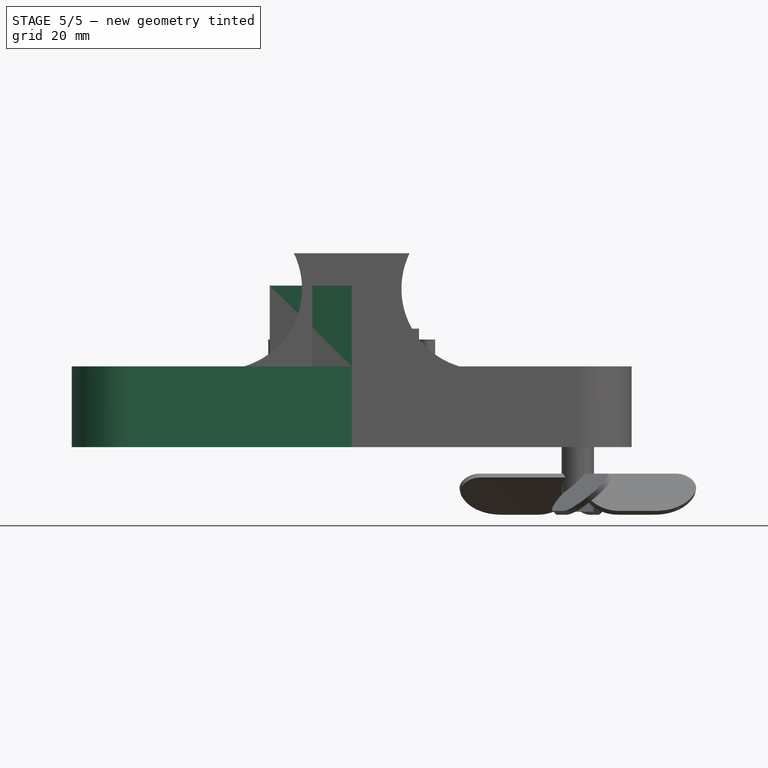
[diagram: stage 5 of 5 — front view after this stage's code; geometry added in this stage tinted green]
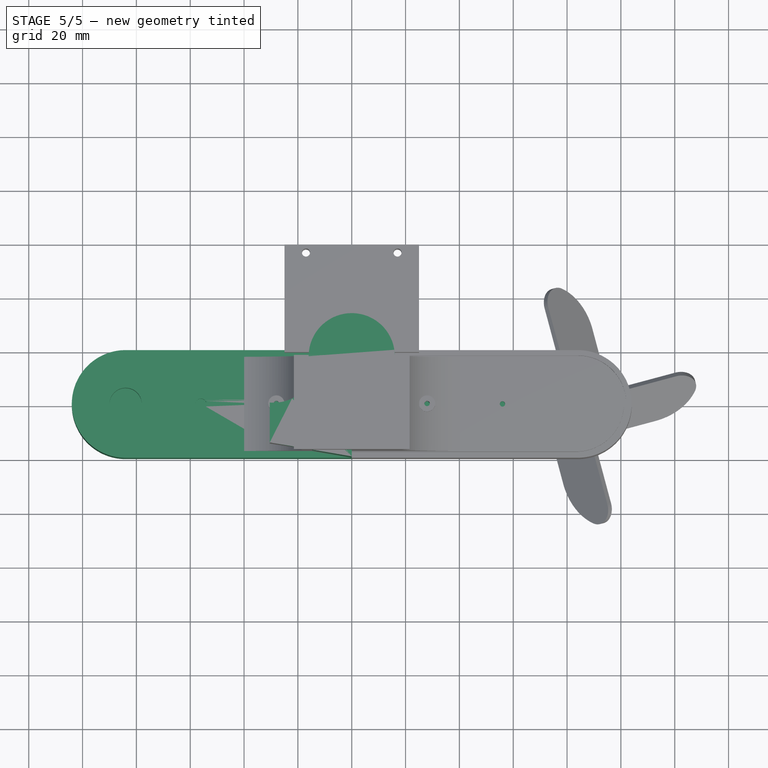
[diagram: stage 5 of 5 — top view after this stage's code; geometry added in this stage tinted green]
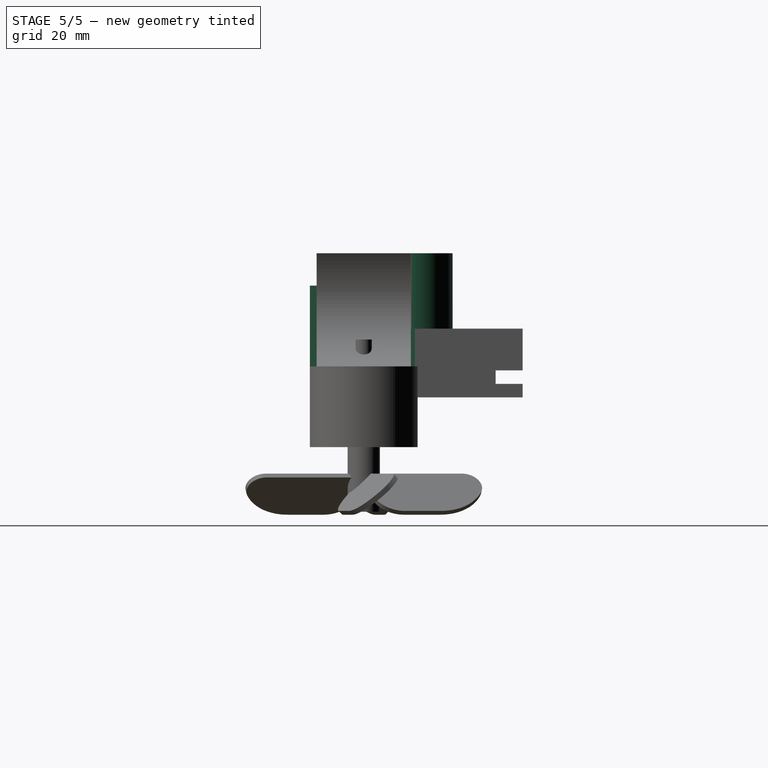
[diagram: stage 5 of 5 — right view after this stage's code; geometry added in this stage tinted green]
FEATURE [Sketcher::SketchObject] Sketch  label="Estructura"
  FullyConstrained = true
  MapMode = 5
  Support = -> [XY_Plane]
  sketch-geometry (4):
    g0: LineSegment StartX=0 StartY=20 StartZ=0 EndX=-84 EndY=20 EndZ=0
    g1: LineSegment StartX=0 StartY=-20 StartZ=0 EndX=-84 EndY=-20 EndZ=0
    g2: ArcOfCircle CenterX=-84 CenterY=-9e-16 CenterZ=0 NormalX=0 NormalY=0 NormalZ=1 AngleXU=0 Radius=20 StartAngle=1.5708 EndAngle=4.71239
    g3: LineSegment StartX=0 StartY=20 StartZ=0 EndX=0 EndY=-20 EndZ=0
  constraints (12):
    c: PointOnObject(g0,g-2)
    c: Horizontal(g0)
    c: PointOnObject(g1,g-2)
    c: Horizontal(g1)
    c: Symmetric(g0,g1,g-1)
    c: Coincident(g2,g1)
    c: Coincident(g2,g0)
    c: Vertical(g2,g0)
    c: Coincident(g3,g0)
    c: Coincident(g3,g1)
    c: DistanceX(g1,g1) = 84
    c: DistanceY(g2,g0) = 20
FEATURE [PartDesign::Pad] Pad
  Direction = (1,1,1)
  Length = 30
  Length2 = 100
  Profile = -> Sketch
  Refine = true
  Type = 0
FEATURE [Sketcher::SketchObject] Sketch001  label="Helice"
  ExternalGeometry = -> [Pad]
  FullyConstrained = true
  MapMode = 5
  Placement = pos=(0,0,30) rot=(0,0,1;0rad)
  Support = -> [Pad]
  sketch-geometry (1):
    g0: Circle CenterX=-84 CenterY=2e-16 CenterZ=0 NormalX=0 NormalY=0 NormalZ=1 AngleXU=0 Radius=6
  constraints (2):
    c: Coincident(g0,g-3)
    c: Radius(g0) = 6
FEATURE [PartDesign::Pocket] Pocket  label="Agujero_helice"
  BaseFeature = -> Pad
  Length = 11
  Length2 = 100
  Profile = -> Sketch001
  Refine = true
  Type = 0
FEATURE [Sketcher::SketchObject] Sketch002
  ExternalGeometry = -> [Pocket]
  FullyConstrained = true
  MapMode = 5
  Placement = pos=(0,0,30) rot=(0,0,1;0rad)
  Support = -> [Pocket]
  sketch-geometry (1):
    g0: Circle CenterX=-56 CenterY=0 CenterZ=0 NormalX=0 NormalY=0 NormalZ=1 AngleXU=0 Radius=2
  constraints (3):
    c: PointOnObject(g0,g-1)
    c: Radius(g0) = 2
    c: DistanceX(g-4,g0) = 28
FEATURE [PartDesign::Pocket] Pocket001  label="AgujeroTornillo"
  BaseFeature = -> Pocket
  Length = 5
  Length2 = 100
  Profile = -> Sketch002
  Refine = true
  Type = 0
FEATURE [PartDesign::LinearPattern] LinearPattern
  BaseFeature = -> Pocket001
  Direction = -> X_Axis
  Length = 28
  Occurrences = 2
  Originals = -> [Pocket001]
  Refine = true
FEATURE [Sketcher::SketchObject] Sketch003
  ExternalGeometry = -> [LinearPattern]
  FullyConstrained = false
  MapMode = 5
  Placement = pos=(0,0,30) rot=(0,0,1;0rad)
  Support = -> [LinearPattern]
  sketch-geometry (5):
    g0: LineSegment StartX=-30.44 StartY=-14.8144 StartZ=0 EndX=-30.44 EndY=0 EndZ=0
    g1: LineSegment StartX=0 StartY=20 StartZ=0 EndX=-13.4143 EndY=15.1563 EndZ=0
    g2: ArcOfCircle CenterX=-29.0155 CenterY=15.5408 CenterZ=0 NormalX=0 NormalY=0 NormalZ=1 AngleXU=0 Radius=15.606 StartAngle=4.62098 EndAngle=6.25854
    g3: LineSegment StartX=-30.44 StartY=-14.8144 StartZ=0 EndX=0 EndY=-20 EndZ=0
    g4: LineSegment StartX=0 StartY=-20 StartZ=0 EndX=0 EndY=20 EndZ=0
  constraints (10):
    c: PointOnObject(g0,g-1)
    c: Vertical(g0)
    c: Coincident(g1,g-3)
    c: Coincident(g2,g0)
    c: Coincident(g2,g1)
    c: Coincident(g3,g0)
    c: Coincident(g3,g-3)
    c: Coincident(g4,g3)
    c: Coincident(g4,g1)
    c: DistanceX(g0,g3) = 30.44
FEATURE [PartDesign::Pad] Pad001  label="Soporte_motor"
  BaseFeature = -> LinearPattern
  Direction = (1,1,1)
  Length = 30
  Length2 = 100
  Profile = -> Sketch003
  Refine = true
  Type = 0
FEATURE [PartDesign::Body] Body  label="Figura_entera"
  Group = -> [Sketch,Pad,Sketch001,Pocket,Sketch002,Pocket001,LinearPattern,Sketch003,Pad001]
  Origin = -> Origin
  Tip = -> Pad001
FEATURE [Part::Feature] Body002  label="Engranajes002"
  Placement = pos=(-28,0,4.1) rot=(0,0,1;0rad)
  shape: bbox 29.91 x 29.98 x 10 mm, 236 faces (baked)
FEATURE [Part::Feature] Body003  label="Engranajes003"
  Placement = pos=(-56,0,4.1) rot=(0,0,1;0rad)
  shape: bbox 29.91 x 29.98 x 10 mm, 236 faces (baked)
FEATURE [Sketcher::SketchObject] Sketch005  label="Estructura002"
  FullyConstrained = true
  MapMode = 5
  Support = -> [XY_Plane002]
  sketch-geometry (4):
    g0: LineSegment StartX=0 StartY=16 StartZ=0 EndX=-84 EndY=16 EndZ=0
    g1: LineSegment StartX=0 StartY=-16 StartZ=0 EndX=-84 EndY=-16 EndZ=0
    g2: ArcOfCircle CenterX=-84 CenterY=-7e-16 CenterZ=0 NormalX=0 NormalY=0 NormalZ=1 AngleXU=0 Radius=16 StartAngle=1.5708 EndAngle=4.71239
    g3: LineSegment StartX=0 StartY=16 StartZ=0 EndX=0 EndY=-16 EndZ=0
  constraints (12):
    c: PointOnObject(g0,g-2)
    c: Horizontal(g0)
    c: PointOnObject(g1,g-2)
    c: Horizontal(g1)
    c: Symmetric(g0,g1,g-1)
    c: Coincident(g2,g1)
    c: Coincident(g2,g0)
    c: Vertical(g2,g0)
    c: Coincident(g3,g0)
    c: Coincident(g3,g1)
    c: DistanceX(g1,g1) = 84
    c: DistanceY(g2,g0) = 16
FEATURE [PartDesign::Pad] Pad003
  Direction = (1,1,1)
  Length = 1
  Length2 = 100
  Profile = -> Sketch005
  Refine = true
  Type = 0
FEATURE [PartDesign::Body] Body006  label="Tapa001"
  Group = -> [Sketch005,Pad003]
  Origin = -> Origin002
  Placement = pos=(0,0,26) rot=(0,0,1;0rad)
  Tip = -> Pad003
FEATURE [Sketcher::SketchObject] Sketch006  label="Estructura003"
  FullyConstrained = true
  MapMode = 5
  Support = -> [XY_Plane003]
  sketch-geometry (4):
    g0: LineSegment StartX=0 StartY=14 StartZ=0 EndX=-84 EndY=14 EndZ=0
    g1: LineSegment StartX=0 StartY=-14 StartZ=0 EndX=-84 EndY=-14 EndZ=0
    g2: ArcOfCircle CenterX=-84 CenterY=1e-16 CenterZ=0 NormalX=0 NormalY=0 NormalZ=1 AngleXU=0 Radius=14 StartAngle=1.5708 EndAngle=4.71239
    g3: LineSegment StartX=0 StartY=14 StartZ=0 EndX=0 EndY=-14 EndZ=0
  constraints (12):
    c: PointOnObject(g0,g-2)
    c: Horizontal(g0)
    c: PointOnObject(g1,g-2)
    c: Horizontal(g1)
    c: Symmetric(g0,g1,g-1)
    c: Coincident(g2,g1)
    c: Coincident(g2,g0)
    c: Vertical(g2,g0)
    c: Coincident(g3,g0)
    c: Coincident(g3,g1)
    c: DistanceX(g1,g1) = 84
    c: DistanceY(g2,g0) = 14
FEATURE [PartDesign::Pad] Pad004
  Direction = (1,1,1)
  Length = 1
  Length2 = 100
  Profile = -> Sketch006
  Refine = true
  Type = 0
FEATURE [Part::Feature] Cut010003  label="Engranaje_helice001"
  Placement = pos=(-84,0,4) rot=(0,0,1;0rad)
  shape: bbox 29.91 x 29.98 x 22 mm, 243 faces (baked)
FEATURE [Part::Feature] Cut013001  label="Eje005"
  Placement = pos=(-56,0,-2) rot=(0,0,1;0rad)
  shape: bbox 12 x 12 x 19 mm, 6 faces (baked)
FEATURE [Part::Feature] Cut013002  label="Eje006"
  Placement = pos=(-28,0,4) rot=(0,0,1;0rad)
  shape: bbox 12 x 12 x 19 mm, 6 faces (baked)
FEATURE [Part::Mirroring] Part__Mirroring003  label="Engranajes002 (Mirror #4)"
  Base = (0,0,0)
  Normal = (1,0,0)
  Source = -> Body002
FEATURE [Part::Mirroring] Part__Mirroring004  label="Engranajes003 (Mirror #5)"
  Base = (0,0,0)
  Normal = (1,0,0)
  Source = -> Body003
FEATURE [Part::Mirroring] Part__Mirroring006  label="Engranaje_helice001 (Mirror #7)"
  Base = (0,0,0)
  Normal = (1,0,0)
  Source = -> Cut010003
FEATURE [Part::Mirroring] Part__Mirroring007  label="Eje005 (Mirror #8)"
  Base = (0,0,0)
  Normal = (1,0,0)
  Source = -> Cut013001
FEATURE [Part::Mirroring] Part__Mirroring008  label="Eje006 (Mirror #9)"
  Base = (0,0,0)
  Normal = (1,0,0)
  Source = -> Cut013002
FEATURE [App::DocumentObjectGroup] Grupo  label="Engranajes"
  Group = -> [Body002,Body003,Cut010001,Cut010003,Cut013001,Cut013002,Fusion001017]
FEATURE [Part::Cylinder] Cylinder030  label="Cilindro010"
  Angle = 360
  AttacherType = Attacher::AttachEngine3D
  Height = 28
  Placement = pos=(0,17,45) rot=(0,0,1;0rad)
  Radius = 16
FEATURE [Part::Box] Box  label="Cubo"
  AttacherType = Attacher::AttachEngine3D
  Height = 41
  Length = 36
  Placement = pos=(-19,1,45) rot=(0,0,1;0rad)
  Width = 16
FEATURE [Part::Cut] Cut013013
  Base = -> Cylinder030
  Placement = pos=(0,5,1) rot=(0,0,1;0rad)
  Refine = true
  Tool = -> Box
FEATURE [Part::Thickness] Thickness001
  Faces = -> Cut013013 [Face3]
  Intersection = false
  Join = 0
  Mode = 0
  Placement = pos=(0,-5,-2) rot=(0,0,1;0rad)
  SelfIntersection = false
  Value = -1
FEATURE [Part::Cylinder] Cylinder033  label="Cilindro013"
  Angle = 360
  AttacherType = Attacher::AttachEngine3D
  Height = 20
  Placement = pos=(0,17,40) rot=(0,0,1;0rad)
  Radius = 14
FEATURE [Part::Cut] Cut013016
  Base = -> Thickness001
  Refine = true
  Tool = -> Cylinder033
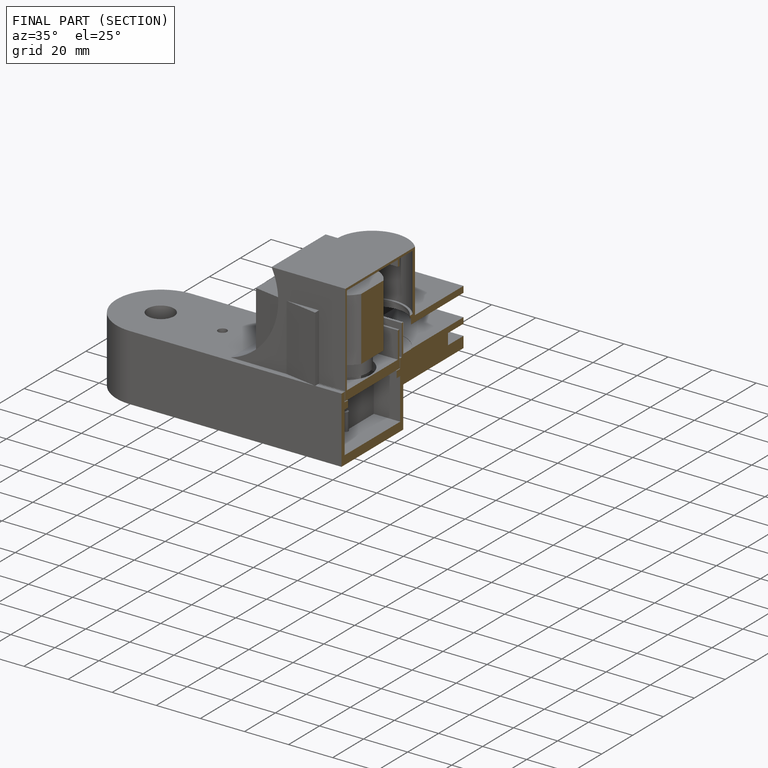
[diagram: finished part — half-section view (interior)]
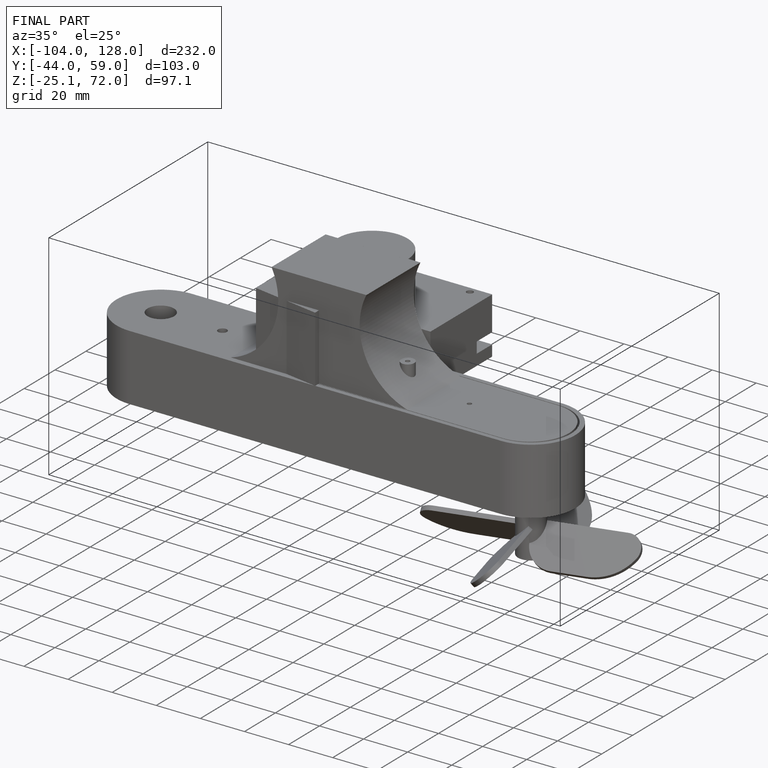
[diagram: finished part — iso view with bounding-box wireframe]
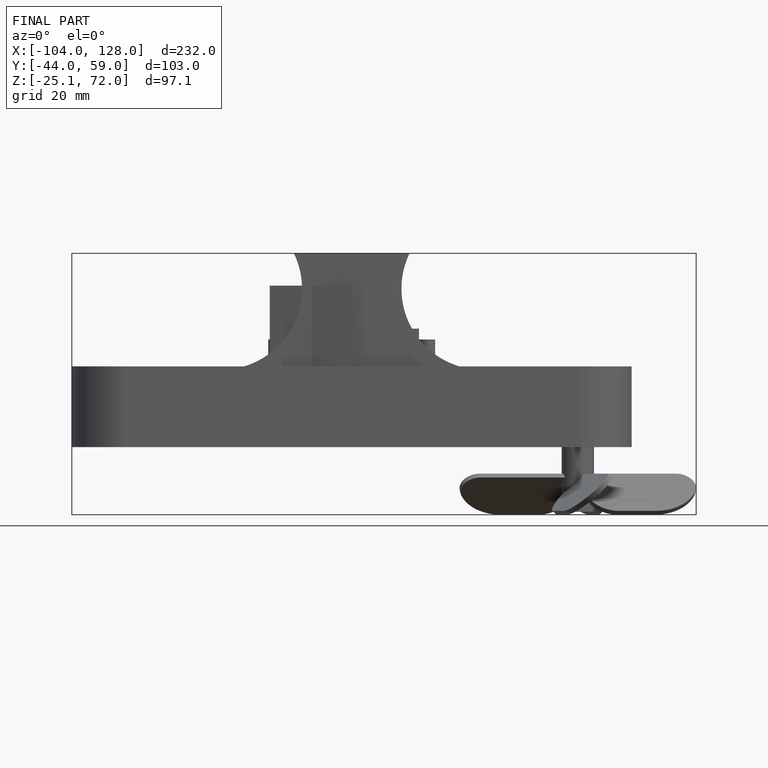
[diagram: finished part — front view with bounding-box wireframe]
